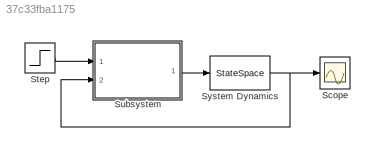
MODEL slx_37c33fba1175
KIND model
CONFIG AbsTol = auto
CONFIG EnableMultiTasking = off
CONFIG FixedStep = auto
CONFIG MaxStep = auto
CONFIG MinStep = auto
CONFIG RelTol = 1e-3
CONFIG SampleTimeConstraint = Unconstrained
CONFIG Solver = VariableStepAuto
CONFIG SolverName = VariableStepAuto
CONFIG StartTime = 0.0
CONFIG StopTime = 10.0
BLOCK [Scope] Scope
  Floating = off
  NumInputPorts = 1
  Ports = [1]
  ScopeSpecificationString = Simulink.scopes.TimeScopeBlockCfg('CurrentConfiguration', extmgr.ConfigurationSet(extmgr.Configuration('Core','General UI',true),extmgr.Configuration('Core','Source UI',true),extmgr.Configuration('Sources','WiredSimulink',true,'DataLoggingVariableName','ScopeData1'),extmgr.Configuration('Visuals','Time Domain',true,'SerializedDisplays',{struct('MinYLimReal','0.989','MaxYLimReal','1.01769','YLabelR...<+1408ch>
BLOCK [Step] Step
  SampleTime = 0
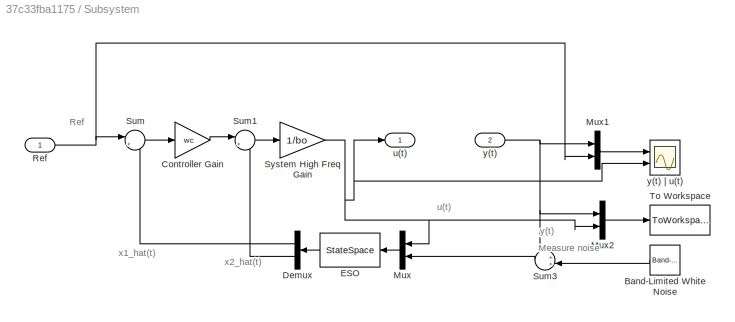
BLOCK [SubSystem] Subsystem
  Ports = [2, 1]
  RequestExecContextInheritance = off
BLOCK [Reference] Subsystem/Band-Limited White Noise  REF=simulink/Sources/Band-Limited
White Noise
  Ports = [0, 1]
  SourceBlock = simulink/Sources/Band-Limited\nWhite Noise
  SourceProductBaseCode = SL
  SourceProductName = Simulink
  SourceType = Band-Limited White Noise.
BLOCK [Gain] Subsystem/Controller Gain
  Gain = wc
  OutDataTypeStr = Inherit: Inherit via internal rule
  ParamDataTypeStr = Inherit: Inherit via internal rule
  SaturateOnIntegerOverflow = off
BLOCK [Demux] Subsystem/Demux
  DisplayOption = bar
  Outputs = 2
  Ports = [1, 2]
BLOCK [StateSpace] Subsystem/ESO
  A = obs.A
  B = obs.B
  C = obs.C
  D = obs.D
  InitialCondition = 0
  Ports = [1, 1]
BLOCK [Mux] Subsystem/Mux
  DisplayOption = bar
  Inputs = 2
  Ports = [2, 1]
BLOCK [Mux] Subsystem/Mux1
  DisplayOption = bar
  Inputs = 2
  Ports = [2, 1]
BLOCK [Mux] Subsystem/Mux2
  DisplayOption = bar
  Inputs = 2
  Ports = [2, 1]
BLOCK [Inport] Subsystem/Ref
  IconDisplay = Port number
BLOCK [Sum] Subsystem/Sum
  IconShape = round
  InputSameDT = off
  Inputs = |+-
  OutDataTypeStr = Inherit: Inherit via internal rule
  Ports = [2, 1]
  SaturateOnIntegerOverflow = off
BLOCK [Sum] Subsystem/Sum1
  IconShape = round
  InputSameDT = off
  Inputs = |+-
  OutDataTypeStr = Inherit: Inherit via internal rule
  Ports = [2, 1]
  SaturateOnIntegerOverflow = off
BLOCK [Sum] Subsystem/Sum3
  IconShape = round
  InputSameDT = off
  Inputs = ++|
  OutDataTypeStr = Inherit: Inherit via internal rule
  Ports = [2, 1]
  SaturateOnIntegerOverflow = off
BLOCK [Gain] Subsystem/System High Freq Gain
  Gain = 1/bo
  OutDataTypeStr = Inherit: Inherit via internal rule
  ParamDataTypeStr = Inherit: Inherit via internal rule
  SaturateOnIntegerOverflow = off
BLOCK [ToWorkspace] Subsystem/To Workspace
  FixptAsFi = on
  MaxDataPoints = inf
  Ports = [1]
  SampleTime = -1
  SaveFormat = Timeseries
  VariableName = simout
BLOCK [Outport] Subsystem/u(t)
  IconDisplay = Port number
BLOCK [Inport] Subsystem/y(t)
  IconDisplay = Port number
  Port = 2
BLOCK [Scope] Subsystem/y(t) | u(t)
  Floating = off
  NumInputPorts = 2
  Ports = [2]
  ScopeSpecificationString = Simulink.scopes.TimeScopeBlockCfg('CurrentConfiguration', extmgr.ConfigurationSet(extmgr.Configuration('Core','General UI',true,'FigureColor',[1 1 1]),extmgr.Configuration('Core','Source UI',true),extmgr.Configuration('Sources','WiredSimulink',true),extmgr.Configuration('Visuals','Time Domain',true,'SerializedDisplays',{struct('MinYLimReal','-1123558209286738595159543757403015799421102799678095620...<+4142ch>
BLOCK [StateSpace] System Dynamics
  A = A
  B = B
  C = C
  D = D
  InitialCondition = 0
  Ports = [1, 1]
ANNOTATION Subsystem: Measure noise
ANNOTATION Subsystem: Ref
ANNOTATION Subsystem: u(t)
ANNOTATION Subsystem: x1_hat(t)
ANNOTATION Subsystem: x2_hat(t)
ANNOTATION Subsystem: y(t)
LINE Step:1 -> Subsystem:1
LINE Subsystem/Band-Limited White Noise:1 -> Subsystem/Sum3:2
LINE Subsystem/Controller Gain:1 -> Subsystem/Sum1:1
LINE Subsystem/Demux:1 -> Subsystem/Sum:2
LINE Subsystem/Demux:2 -> Subsystem/Sum1:2
LINE Subsystem/ESO:1 -> Subsystem/Demux:1
LINE Subsystem/Mux1:1 -> Subsystem/y(t) | u(t):1
LINE Subsystem/Mux2:1 -> Subsystem/To Workspace:1
LINE Subsystem/Mux:1 -> Subsystem/ESO:1
NET Subsystem/Ref:1 -> Subsystem/Mux1:2, Subsystem/Sum:1
LINE Subsystem/Sum1:1 -> Subsystem/System High Freq Gain:1
LINE Subsystem/Sum3:1 -> Subsystem/Mux:2
LINE Subsystem/Sum:1 -> Subsystem/Controller Gain:1
NET Subsystem/System High Freq Gain:1 -> Subsystem/Mux2:2, Subsystem/Mux:1, Subsystem/u(t):1, Subsystem/y(t) | u(t):2
NET Subsystem/y(t):1 -> Subsystem/Mux1:1, Subsystem/Mux2:1, Subsystem/Sum3:1
LINE Subsystem:1 -> System Dynamics:1
NET System Dynamics:1 -> Scope:1, Subsystem:2
note: NET lines group one-source signal fan-out (src -> all destinations, sorted); 1:1 wires keep LINE
